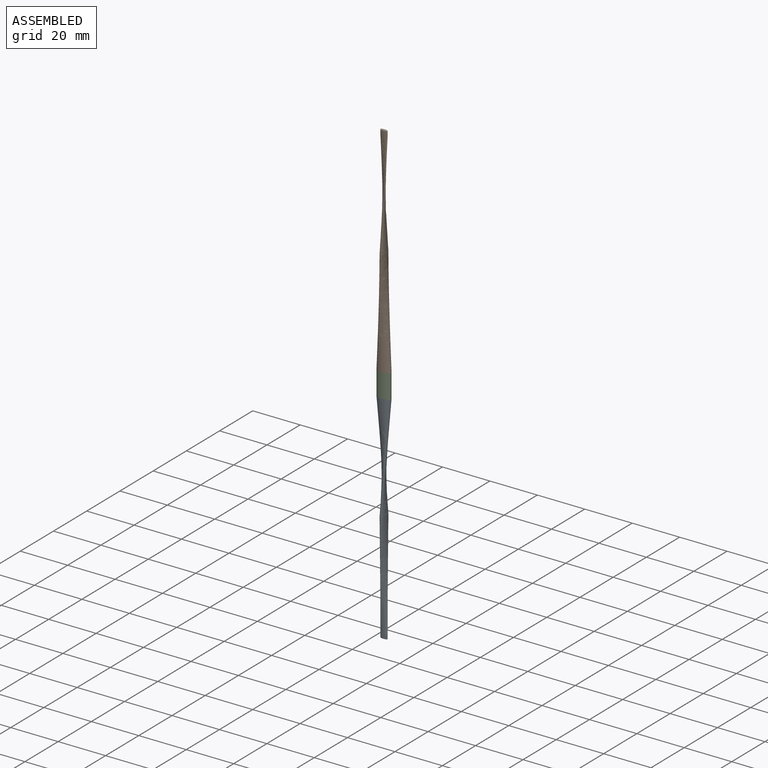
[diagram: assembled view]
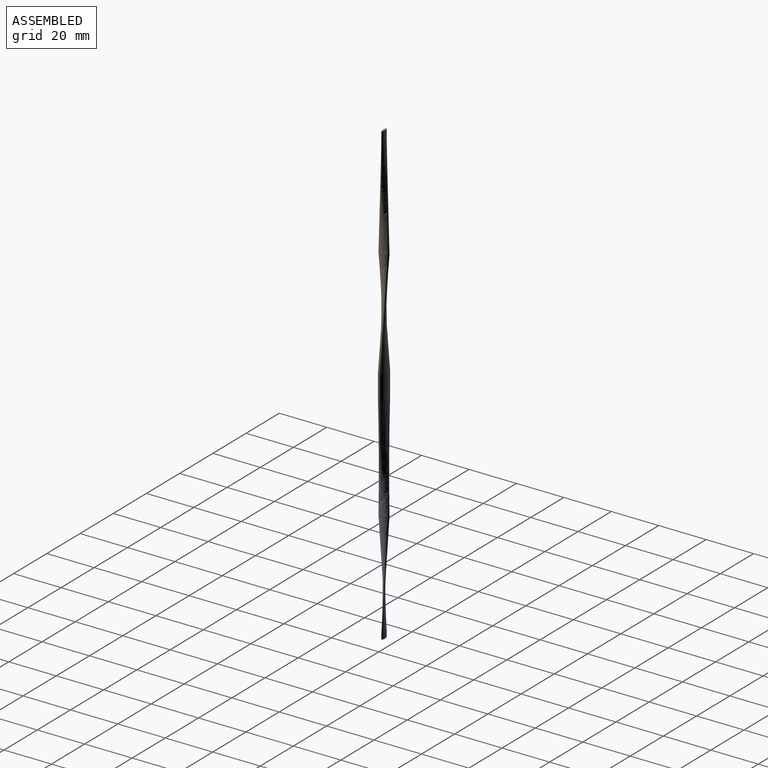
[diagram: assembled view, second angle]
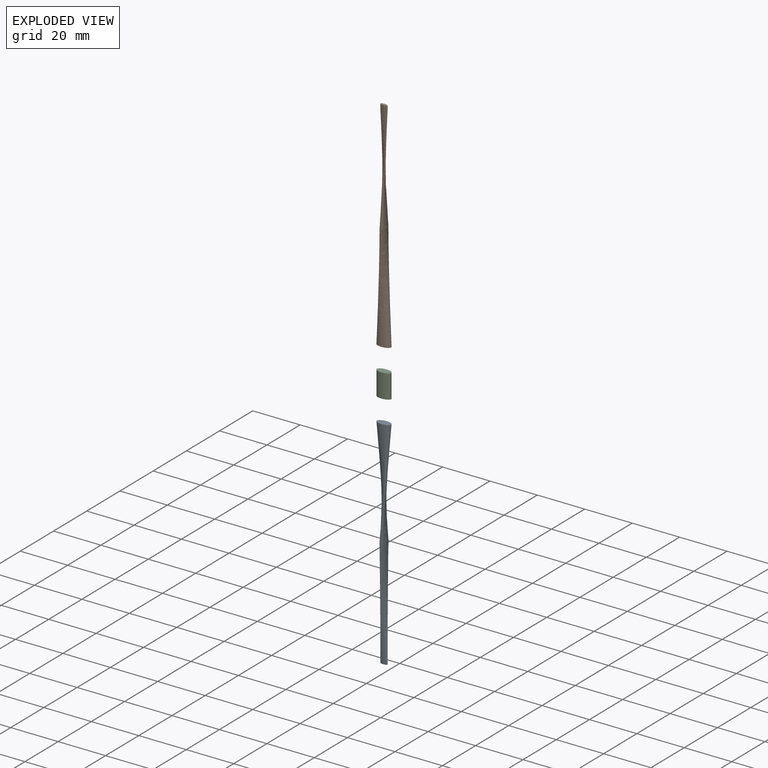
[diagram: exploded view]
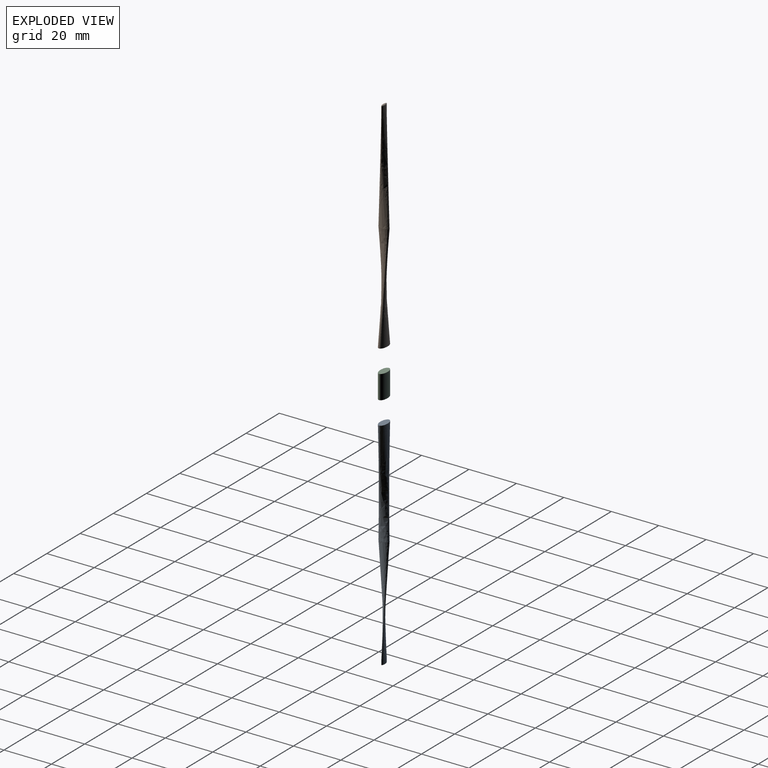
[diagram: exploded view, second angle]
ASSEMBLY  parts=3 mates=2
PART A: 9 faces, bbox 6x4.5x92 mm
  f0: plane 6x3mm, normal (0,0,-1), area 14.1mm2, adj f1
  f1: bspline ~45x6mm, area 461.4mm2, adj f0,f2
  f2: bspline ~45x4.5mm, area 320.5mm2, adj f1,f3
  f3: extruded ~3x1.67mm, area 11.2mm2, adj f2,f5,f6,f7,f8
  f4: plane 2.13x0.34mm, normal (0,0,1), area 0.5mm2, adj f6,f7
  f5: bspline ~0.46x0.44mm, area 0.2mm2, adj f3,f6,f7
  f6: bspline ~2.87x0.61mm, area 1.3mm2, adj f3,f4,f5,f8
  f7: bspline ~2.87x0.62mm, area 1.3mm2, adj f3,f4,f5,f8
  f8: bspline ~0.46x0.44mm, area 0.2mm2, adj f3,f6,f7
PART B: same geometry as A
PART C: 3 faces, bbox 6x3x10 mm
  f0: extruded ~10x6mm, area 145.3mm2, adj f1,f2
  f1: plane 6x3mm, normal (0,0,1), area 14.1mm2, adj f0
  f2: plane 6x3mm, normal (0,0,-1), area 14.1mm2, adj f0
PLACE A rot(axis=(1,0,0),180deg) t=(-63.86,-12.49,-16.83)mm
PLACE B t=(-63.86,-12.49,-6.83)mm
PLACE C t=(-63.86,-21.42,-16.83)mm
MATE fastened C.f2 <-> A.f0  axis (0,0,-1) through (-63.86,-12.49,-16.83)mm
MATE fastened C.f1 <-> B.f0  axis (0,0,1) through (-63.86,-12.49,-6.83)mm
